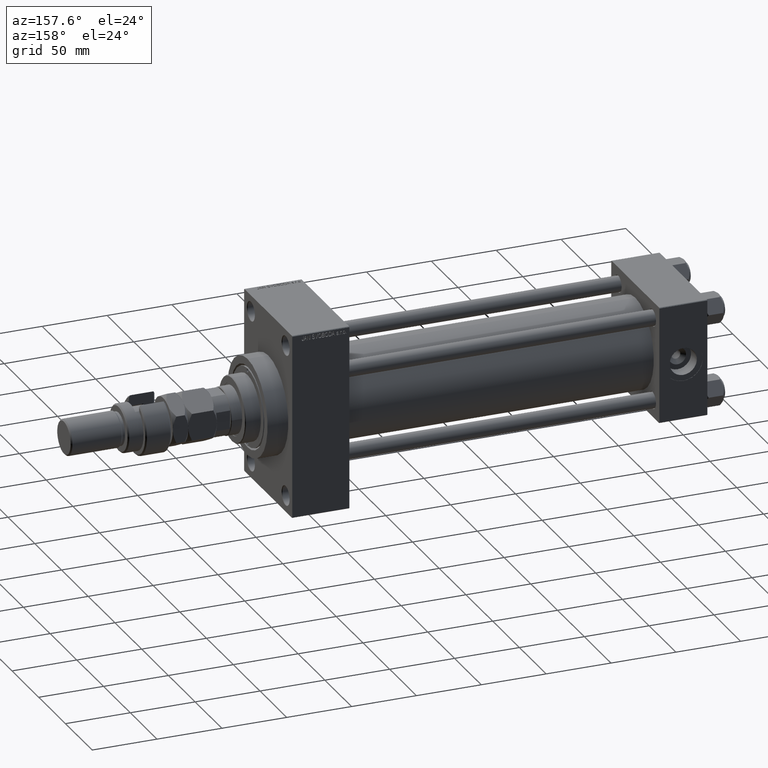
[diagram: clean part render]
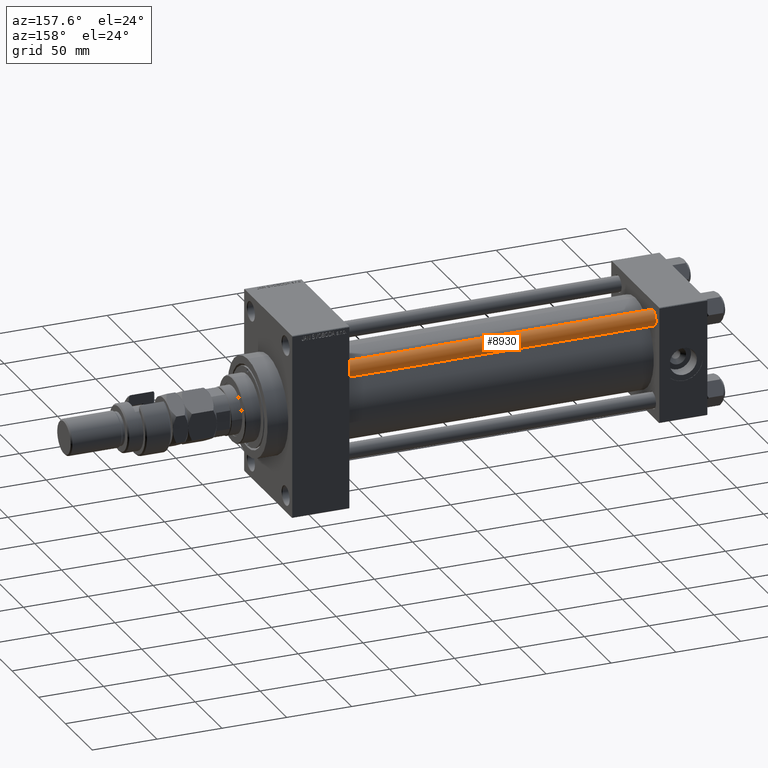
[diagram: same view with one face highlighted and labeled with its STEP entity id]
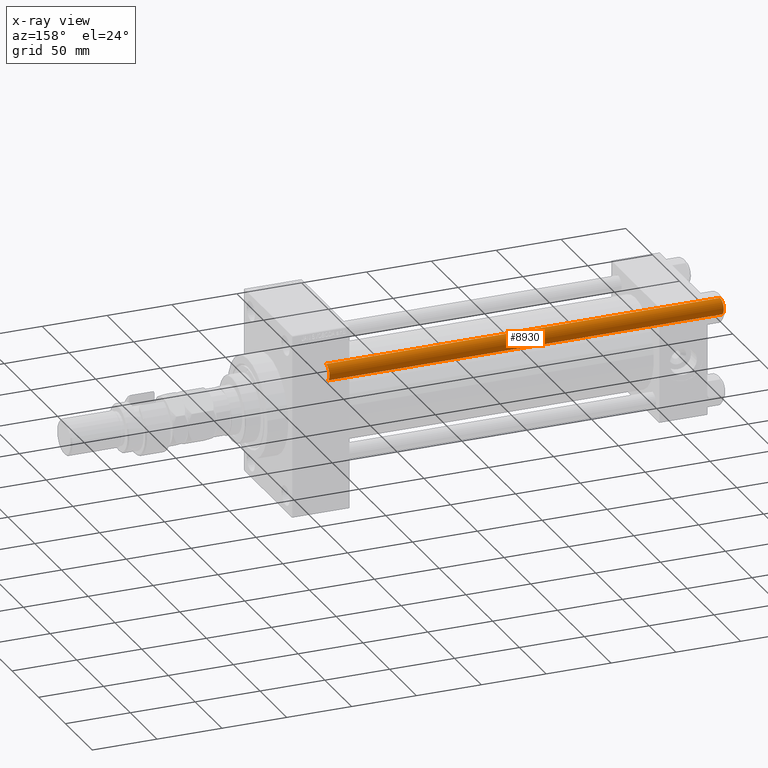
[diagram: x-ray of the same camera — body ghosted, the highlighted face saturated]
A machine part, auxiliary view. The second image highlights one B-rep face of the part: STEP entity #8930.
The next image is the same camera in x-ray: the body ghosted, the highlighted face saturated — about 0% of this face is hidden behind the body in this view.
In plain terms, the highlighted cylindrical surface (edge-blend (fillet) strip) has radius 6 mm, axis along (-1, -0, 0).
Its self-contained STEP definition (entity closure, byte-faithful):
#50 = DIRECTION ( 'NONE',  ( -0.000000000000000000, -0.000000000000000000, -1.000000000000000000 ) ) ;
#1880 = LINE ( 'NONE', #4943, #38786 ) ;
#1955 = DIRECTION ( 'NONE',  ( 1.000000000000000000, 0.000000000000000000, 0.000000000000000000 ) ) ;
#4370 = DIRECTION ( 'NONE',  ( -0.000000000000000000, -0.000000000000000000, 1.000000000000000000 ) ) ;
#4943 = CARTESIAN_POINT ( 'NONE',  ( -6.000000000000000888, 0.000000000000000000, 305.0000000000000000 ) ) ;
#6954 = CARTESIAN_POINT ( 'NONE',  ( 6.000000000000000888, 7.347880794884120722E-16, 304.5000000000000000 ) ) ;
#8482 = VERTEX_POINT ( 'NONE', #6954 ) ;
#8930 = ADVANCED_FACE ( 'NONE', ( #15540 ), #27987, .T. ) ;
#9454 = VERTEX_POINT ( 'NONE', #45619 ) ;
#9465 = EDGE_LOOP ( 'NONE', ( #37048, #14718, #9700, #10288 ) ) ;
#9700 = ORIENTED_EDGE ( 'NONE', *, *, #30980, .T. ) ;
#10288 = ORIENTED_EDGE ( 'NONE', *, *, #13057, .F. ) ;
#10316 = CARTESIAN_POINT ( 'NONE',  ( 0.000000000000000000, 0.000000000000000000, 304.5000000000000000 ) ) ;
#10825 = EDGE_CURVE ( 'NONE', #8482, #9454, #17873, .T. ) ;
#12807 = CARTESIAN_POINT ( 'NONE',  ( -6.000000000000000888, 0.000000000000000000, 304.5000000000000000 ) ) ;
#13057 = EDGE_CURVE ( 'NONE', #23253, #44073, #1880, .T. ) ;
#14505 = AXIS2_PLACEMENT_3D ( 'NONE', #10316, #36824, #1955 ) ;
#14521 = CARTESIAN_POINT ( 'NONE',  ( -6.000000000000000888, 0.000000000000000000, 0.5000000000000004441 ) ) ;
#14718 = ORIENTED_EDGE ( 'NONE', *, *, #10825, .T. ) ;
#15540 = FACE_OUTER_BOUND ( 'NONE', #9465, .T. ) ;
#17782 = EDGE_CURVE ( 'NONE', #23253, #8482, #26703, .T. ) ;
#17873 = LINE ( 'NONE', #29585, #39573 ) ;
#23253 = VERTEX_POINT ( 'NONE', #12807 ) ;
#24430 = DIRECTION ( 'NONE',  ( -1.000000000000000000, 0.000000000000000000, 0.000000000000000000 ) ) ;
#26526 = DIRECTION ( 'NONE',  ( 1.000000000000000000, 0.000000000000000000, 0.000000000000000000 ) ) ;
#26703 = CIRCLE ( 'NONE', #14505, 6.000000000000000888 ) ;
#27987 = CYLINDRICAL_SURFACE ( 'NONE', #46832, 6.000000000000000888 ) ;
#28317 = CIRCLE ( 'NONE', #46207, 6.000000000000000888 ) ;
#29082 = DIRECTION ( 'NONE',  ( -0.000000000000000000, -0.000000000000000000, -1.000000000000000000 ) ) ;
#29585 = CARTESIAN_POINT ( 'NONE',  ( 6.000000000000000888, 7.347880794884120722E-16, 305.0000000000000000 ) ) ;
#30980 = EDGE_CURVE ( 'NONE', #9454, #44073, #28317, .T. ) ;
#36824 = DIRECTION ( 'NONE',  ( 0.000000000000000000, 0.000000000000000000, -1.000000000000000000 ) ) ;
#37048 = ORIENTED_EDGE ( 'NONE', *, *, #17782, .T. ) ;
#38786 = VECTOR ( 'NONE', #44130, 1000.000000000000000 ) ;
#39573 = VECTOR ( 'NONE', #29082, 1000.000000000000000 ) ;
#42056 = CARTESIAN_POINT ( 'NONE',  ( 0.000000000000000000, 0.000000000000000000, 0.5000000000000004441 ) ) ;
#43514 = CARTESIAN_POINT ( 'NONE',  ( 0.000000000000000000, 0.000000000000000000, 305.0000000000000000 ) ) ;
#44073 = VERTEX_POINT ( 'NONE', #14521 ) ;
#44130 = DIRECTION ( 'NONE',  ( -0.000000000000000000, -0.000000000000000000, -1.000000000000000000 ) ) ;
#45619 = CARTESIAN_POINT ( 'NONE',  ( 6.000000000000000888, 7.347880794884120722E-16, 0.5000000000000004441 ) ) ;
#46207 = AXIS2_PLACEMENT_3D ( 'NONE', #42056, #4370, #26526 ) ;
#46832 = AXIS2_PLACEMENT_3D ( 'NONE', #43514, #50, #24430 ) ;